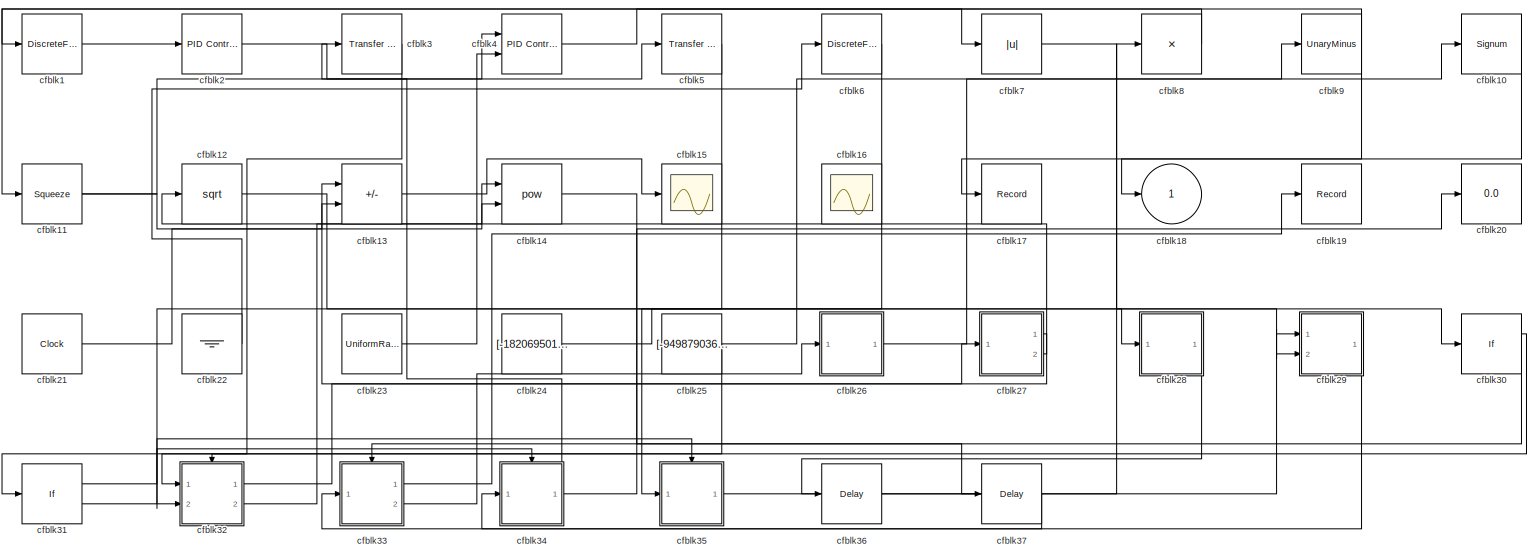
[diagram: root canvas - part 1/1, most of the canvas]
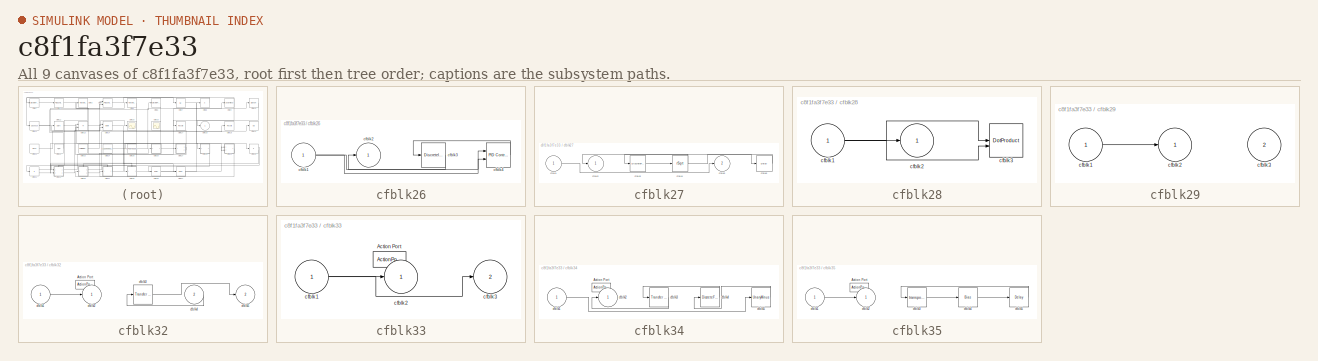
[diagram: thumbnail index - all 9 canvases of the model, root first then tree order]
MODEL slx_c8f1fa3f7e33
KIND model
CONFIG AbsTol = auto
CONFIG EnableMultiTasking = off
CONFIG FixedStep = auto
CONFIG MaxStep = auto
CONFIG MinStep = auto
CONFIG RelTol = 1e-3
CONFIG SampleTimeConstraint = Unconstrained
CONFIG SolverName = VariableStepAuto
CONFIG StartTime = 0.0
CONFIG StopTime = 10.0
BLOCK [DiscreteFir] cfblk1
  InputPortMap = u0
  OutputPortMap = o0
  Ports = [1, 1]
  SampleTime = 1
BLOCK [Signum] cfblk10
BLOCK [Squeeze] cfblk11
BLOCK [Sqrt] cfblk12
BLOCK [Sum] cfblk13
  IconShape = rectangular
  Inputs = --
  Ports = [2, 1]
BLOCK [Math] cfblk14
  Operator = pow
  Ports = [2, 1]
BLOCK [Scope] cfblk15
  Floating = off
  NumInputPorts = 1
  Ports = [1]
BLOCK [Scope] cfblk16
  Floating = on
  NumInputPorts = 1
  Ports = []
BLOCK [Record] cfblk17
  FileSettingsInternal = {"entries":[{"content":{"excelSettings":{"content":{},"type":"Streamout.ExcelSettings"}},"type":"Streamout.FileSettingStorage","uuid":"fcd725d5-6b35-409c-89ae-d3f01eba589f"}],"packageUris":["http://schema.mathworks.com/mf0/streamout_blocks/R2020a"],"version":"1.0"}
  Ports = [1]
  SignalsInternal = {"entries":[{"content":{"signals":[{"content":{"blockPath":["sampleModel271/cfblk17"],"channel":[],"dimensions":[1],"domain":"sampleModel271/cfblk17","lineColor":"#0072bd","plots":[1],"port":1,"sid":[""],"signalID":11243,"signalName":"cfblk10"},"type":"RecordBlkView.Signal","uuid":"5d5cd07c-81ce-4ede-bfe2-672dd694890d"}]},"type":"RecordBlkView.InputSignals","uuid":"6d8adaf2-e7e5-4380-b5b4-58682ccb...<+98ch>
  VisualizationBindings = {"sparklinesplugin":{"info":[{"bindingParametersList":[],"subplotID":1}]}}
BLOCK [Outport] cfblk18
BLOCK [Record] cfblk19
  FileSettingsInternal = {"entries":[{"content":{"excelSettings":{"content":{},"type":"Streamout.ExcelSettings"}},"type":"Streamout.FileSettingStorage","uuid":"9477bd23-7715-4fa9-aca3-423888fa7ac5"}],"packageUris":["http://schema.mathworks.com/mf0/streamout_blocks/R2020a"],"version":"1.0"}
  Ports = [1]
  SignalsInternal = {"entries":[{"content":{"signals":[{"content":{"blockPath":["sampleModel271/cfblk19"],"channel":[],"dimensions":[1],"domain":"sampleModel271/cfblk19","lineColor":"#d95319","plots":[1],"port":1,"sid":[""],"signalID":11247,"signalName":"cfblk33:1"},"type":"RecordBlkView.Signal","uuid":"2c34d668-c454-440d-a435-fed6d01ddb04"}]},"type":"RecordBlkView.InputSignals","uuid":"4495f361-eee6-40b4-a1a9-80b73b...<+100ch>
  VisualizationBindings = {"sparklinesplugin":{"info":[{"bindingParametersList":[],"subplotID":1}]}}
BLOCK [Reference] cfblk2  REF=slpidlib/PID Controller
  Ports = [1, 1]
  SourceBlock = slpidlib/PID Controller
  SourceProductBaseCode = SL
  SourceType = PID 1dof
BLOCK [Display] cfblk20
  Decimation = 1
  Ports = [1]
BLOCK [Clock] cfblk21
BLOCK [Ground] cfblk22
BLOCK [UniformRandomNumber] cfblk23
  Maximum = [8307671364.595862]
  Minimum = [-3765244147.785903]
  SampleTime = 0.1
  Seed = [31074929.000000]
BLOCK [Constant] cfblk24
  SampleTime = 1
  Value = [-182069501.525380]
BLOCK [Constant] cfblk25
  SampleTime = 1
  Value = [-949879036.119760]
BLOCK [SubSystem] cfblk26
  Ports = [1, 1]
  RequestExecContextInheritance = off
BLOCK [Inport] cfblk26/cfblk1
BLOCK [Outport] cfblk26/cfblk2
BLOCK [DiscreteIntegrator] cfblk26/cfblk3
  ICPrevOutput = DiscIntNeverNeededParam
  ICPrevScaledInput = DiscIntNeverNeededParam
  InitialConditionSetting = Auto
  Ports = [1, 1]
BLOCK [Reference] cfblk26/cfblk4  REF=slpidlib/PID Controller (2DOF)
  Ports = [2, 1]
  SourceBlock = slpidlib/PID Controller (2DOF)
  SourceProductBaseCode = SL
  SourceType = PID 2dof
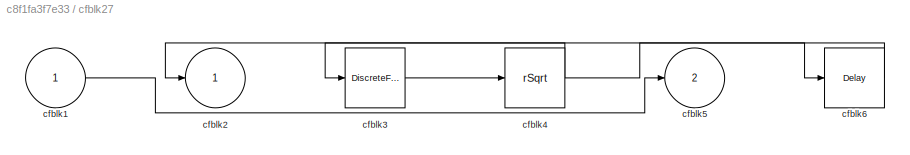
BLOCK [SubSystem] cfblk27
  Ports = [1, 2]
  RequestExecContextInheritance = off
BLOCK [Inport] cfblk27/cfblk1
BLOCK [Outport] cfblk27/cfblk2
BLOCK [DiscreteFir] cfblk27/cfblk3
  InputPortMap = u0
  OutputPortMap = o0
  Ports = [1, 1]
  SampleTime = 1
BLOCK [Sqrt] cfblk27/cfblk4
  AlgorithmType = Newton-Raphson
  Operator = rSqrt
BLOCK [Outport] cfblk27/cfblk5
  Port = 2
BLOCK [Delay] cfblk27/cfblk6
  InputPortMap = u0
  Ports = [1, 1]
  SampleTime = 1
BLOCK [SubSystem] cfblk28
  Ports = [1, 1]
  RequestExecContextInheritance = off
BLOCK [Inport] cfblk28/cfblk1
BLOCK [Outport] cfblk28/cfblk2
BLOCK [DotProduct] cfblk28/cfblk3
  OutDataTypeStr = Inherit: Inherit via internal rule
BLOCK [SubSystem] cfblk29
  Ports = [2, 1]
  RequestExecContextInheritance = off
BLOCK [Inport] cfblk29/cfblk1
BLOCK [Outport] cfblk29/cfblk2
BLOCK [Inport] cfblk29/cfblk3
  Port = 2
BLOCK [Reference] cfblk3  REF=simulink/Discrete/Transfer Fcn
Lead or Lag
  Ports = [1, 1]
  SourceBlock = simulink/Discrete/Transfer Fcn\nLead or Lag
  SourceProductBaseCode = SL
  SourceType = Lead or Lag Compensator
BLOCK [If] cfblk30
  IfExpression = u1 >= 0
  Ports = [1, 2]
  SampleTime = 1
BLOCK [If] cfblk31
  IfExpression = u1 >= 0
  Ports = [1, 2]
  SampleTime = 1
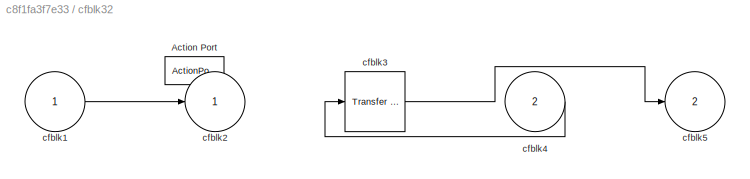
BLOCK [SubSystem] cfblk32
  Ports = [2, 2, 0, 0, 0, 0, 0, 1]
  RequestExecContextInheritance = off
  TreatAsAtomicUnit = on
BLOCK [ActionPort] cfblk32/Action Port
  ActionPortLabel = if(u1 >= 0)
BLOCK [Inport] cfblk32/cfblk1
BLOCK [Outport] cfblk32/cfblk2
BLOCK [Reference] cfblk32/cfblk3  REF=simulink/Discrete/Transfer Fcn
Real Zero
  Ports = [1, 1]
  SourceBlock = simulink/Discrete/Transfer Fcn\nReal Zero
  SourceProductBaseCode = SL
  SourceType = Transfer Fcn Real Zero
BLOCK [Inport] cfblk32/cfblk4
  Port = 2
BLOCK [Outport] cfblk32/cfblk5
  Port = 2
BLOCK [SubSystem] cfblk33
  Ports = [1, 2, 0, 0, 0, 0, 0, 1]
  RequestExecContextInheritance = off
  TreatAsAtomicUnit = on
BLOCK [ActionPort] cfblk33/Action Port
  ActionPortLabel = else
BLOCK [Inport] cfblk33/cfblk1
BLOCK [Outport] cfblk33/cfblk2
BLOCK [Outport] cfblk33/cfblk3
  Port = 2
BLOCK [SubSystem] cfblk34
  Ports = [1, 1, 0, 0, 0, 0, 0, 1]
  RequestExecContextInheritance = off
  TreatAsAtomicUnit = on
BLOCK [ActionPort] cfblk34/Action Port
  ActionPortLabel = if(u1 >= 0)
BLOCK [Inport] cfblk34/cfblk1
BLOCK [Outport] cfblk34/cfblk2
BLOCK [Reference] cfblk34/cfblk3  REF=simulink/Discrete/Transfer Fcn
Lead or Lag
  Ports = [1, 1]
  SourceBlock = simulink/Discrete/Transfer Fcn\nLead or Lag
  SourceProductBaseCode = SL
  SourceType = Lead or Lag Compensator
BLOCK [DiscreteFilter] cfblk34/cfblk4
  InputPortMap = u0
  Ports = [1, 1]
BLOCK [UnaryMinus] cfblk34/cfblk5
BLOCK [SubSystem] cfblk35
  Ports = [1, 1, 0, 0, 0, 0, 0, 1]
  RequestExecContextInheritance = off
  TreatAsAtomicUnit = on
BLOCK [ActionPort] cfblk35/Action Port
  ActionPortLabel = else
BLOCK [Inport] cfblk35/cfblk1
BLOCK [Outport] cfblk35/cfblk2
BLOCK [Math] cfblk35/cfblk3
  Operator = transpose
  Ports = [1, 1]
BLOCK [Bias] cfblk35/cfblk4
  Bias = [-196310627.792283]
  SaturateOnIntegerOverflow = off
BLOCK [Delay] cfblk35/cfblk5
  InputPortMap = u0
  Ports = [1, 1]
BLOCK [Delay] cfblk36
  InputPortMap = u0
  Ports = [1, 1]
  SampleTime = 1
BLOCK [Delay] cfblk37
  InputPortMap = u0
  Ports = [1, 1]
  SampleTime = 1
BLOCK [Reference] cfblk4  REF=slpidlib/PID Controller (2DOF)
  Ports = [2, 1]
  SourceBlock = slpidlib/PID Controller (2DOF)
  SourceProductBaseCode = SL
  SourceType = PID 2dof
BLOCK [Reference] cfblk5  REF=simulink/Discrete/Transfer Fcn
Lead or Lag
  Ports = [1, 1]
  SourceBlock = simulink/Discrete/Transfer Fcn\nLead or Lag
  SourceProductBaseCode = SL
  SourceType = Lead or Lag Compensator
BLOCK [DiscreteFir] cfblk6
  InputPortMap = u0
  OutputPortMap = o0
  Ports = [1, 1]
  SampleTime = 1
BLOCK [Abs] cfblk7
  SaturateOnIntegerOverflow = off
BLOCK [Product] cfblk8
  Inputs = *
  Ports = [1, 1]
BLOCK [UnaryMinus] cfblk9
LINE cfblk10:1 -> cfblk17:1
NET cfblk11:1 -> cfblk13:2, cfblk5:1
LINE cfblk12:1 -> cfblk28:1
LINE cfblk13:1 -> cfblk15:1
LINE cfblk14:1 -> cfblk37:1
LINE cfblk1:1 -> cfblk2:1
LINE cfblk21:1 -> cfblk14:1
LINE cfblk22:1 -> cfblk6:1
LINE cfblk23:1 -> cfblk4:2
LINE cfblk24:1 -> cfblk30:1
NET cfblk25:1 -> cfblk31:1, cfblk9:1
NET cfblk26/cfblk1:1 -> cfblk26/cfblk4:1, cfblk26/cfblk4:2
LINE cfblk26/cfblk3:1 -> cfblk26/cfblk2:1
LINE cfblk26/cfblk4:1 -> cfblk26/cfblk3:1
LINE cfblk26:1 -> cfblk10:1
LINE cfblk27/cfblk1:1 -> cfblk27/cfblk5:1
LINE cfblk27/cfblk3:1 -> cfblk27/cfblk4:1
NET cfblk27/cfblk4:1 -> cfblk27/cfblk2:1, cfblk27/cfblk6:1
LINE cfblk27/cfblk6:1 -> cfblk27/cfblk3:1
LINE cfblk27:1 -> cfblk13:1
LINE cfblk27:2 -> cfblk12:1
NET cfblk28/cfblk1:1 -> cfblk28/cfblk2:1, cfblk28/cfblk3:1, cfblk28/cfblk3:2
LINE cfblk28:1 -> cfblk36:1
LINE cfblk29/cfblk1:1 -> cfblk29/cfblk2:1
LINE cfblk29:1 -> cfblk34:1
LINE cfblk2:1 -> cfblk4:1
LINE cfblk30:1 -> cfblk32:ifaction
LINE cfblk30:2 -> cfblk33:ifaction
LINE cfblk31:1 -> cfblk34:ifaction
LINE cfblk31:2 -> cfblk35:ifaction
LINE cfblk32/cfblk1:1 -> cfblk32/cfblk2:1
LINE cfblk32/cfblk3:1 -> cfblk32/cfblk5:1
LINE cfblk32/cfblk4:1 -> cfblk32/cfblk3:1
LINE cfblk32:1 -> cfblk27:1
LINE cfblk32:2 -> cfblk14:2
NET cfblk33/cfblk1:1 -> cfblk33/cfblk2:1, cfblk33/cfblk3:1
LINE cfblk33:1 -> cfblk19:1
LINE cfblk33:2 -> cfblk26:1
LINE cfblk34/cfblk1:1 -> cfblk34/cfblk5:1
LINE cfblk34/cfblk3:1 -> cfblk34/cfblk2:1
LINE cfblk34/cfblk4:1 -> cfblk34/cfblk3:1
LINE cfblk34/cfblk5:1 -> cfblk34/cfblk4:1
NET cfblk34:1 -> cfblk20:1, cfblk3:1
LINE cfblk35/cfblk1:1 -> cfblk35/cfblk2:1
LINE cfblk35/cfblk3:1 -> cfblk35/cfblk4:1
LINE cfblk35/cfblk4:1 -> cfblk35/cfblk5:1
LINE cfblk35/cfblk5:1 -> cfblk35/cfblk3:1
LINE cfblk35:1 -> cfblk8:1
LINE cfblk36:1 -> cfblk29:1
LINE cfblk37:1 -> cfblk33:1
LINE cfblk3:1 -> cfblk32:1
LINE cfblk4:1 -> cfblk7:1
LINE cfblk5:1 -> cfblk32:2
LINE cfblk6:1 -> cfblk35:1
LINE cfblk7:1 -> cfblk29:2
LINE cfblk8:1 -> cfblk11:1
NET cfblk9:1 -> cfblk18:1, cfblk1:1
note: NET lines group one-source signal fan-out (src -> all destinations, sorted); 1:1 wires keep LINE
